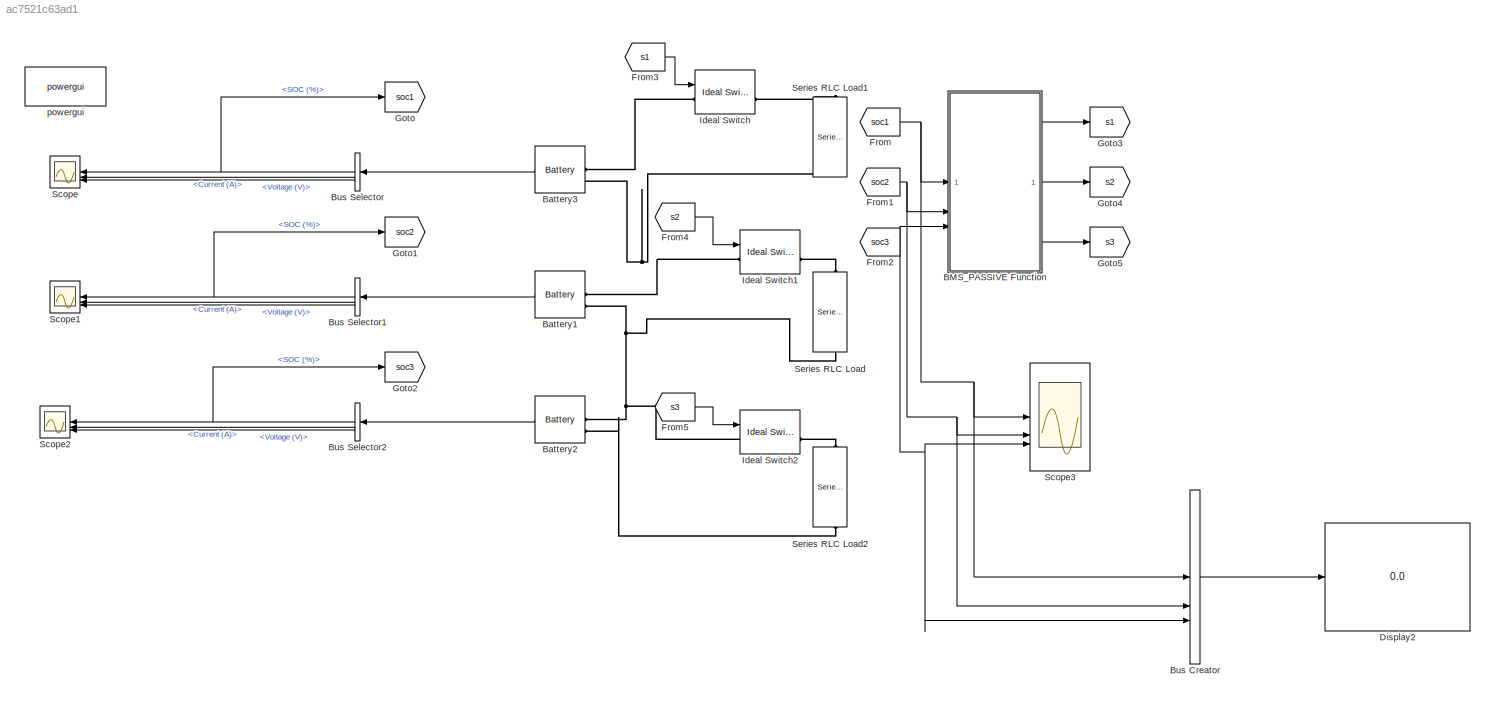
MODEL slx_ac7521c63ad1
KIND model
CONFIG AbsTol = auto
CONFIG EnableMultiTasking = off
CONFIG FixedStep = auto
CONFIG MaxStep = auto
CONFIG MinStep = auto
CONFIG RelTol = 1e-3
CONFIG SampleTimeConstraint = Unconstrained
CONFIG SolverName = VariableStepAuto
CONFIG StartTime = 0.0
CONFIG StopTime = 300
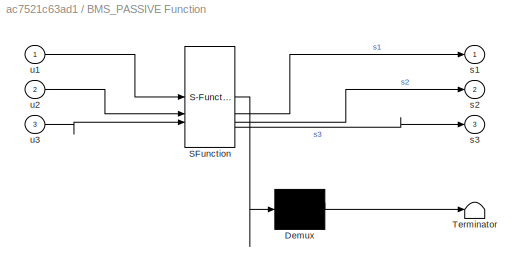
BLOCK [SubSystem] BMS_PASSIVE Function
  ErrorFcn = Stateflow.Translate.translate
  LibrarySourceBlock = simulink/User-Defined\nFunctions/MATLAB Function
  PermitHierarchicalResolution = ExplicitOnly
  SFBlockType = MATLAB Function
  TreatAsAtomicUnit = on
BLOCK [Demux] BMS_PASSIVE Function/ Demux 
  Outputs = 1
BLOCK [S-Function] BMS_PASSIVE Function/ SFunction 
  EnableBusSupport = on
  FunctionName = sf_sfun
  PortCounts = [3 4]
  SFcnIsStateOwnerBlock = off
  SFunctionDeploymentMode = off
  Tag = Stateflow S-Function 2
BLOCK [Terminator] BMS_PASSIVE Function/ Terminator 
BLOCK [Outport] BMS_PASSIVE Function/s1
BLOCK [Outport] BMS_PASSIVE Function/s2
  Port = 2
BLOCK [Outport] BMS_PASSIVE Function/s3
  Port = 3
BLOCK [Inport] BMS_PASSIVE Function/u1
BLOCK [Inport] BMS_PASSIVE Function/u2
  Port = 2
BLOCK [Inport] BMS_PASSIVE Function/u3
  Port = 3
BLOCK [Reference] Battery1  REF=spsBatteryLib/Battery
  LibrarySourceBlock = sps_lib/Sources/Battery
  SourceBlock = spsBatteryLib/Battery
  SourceType = Battery
BLOCK [Reference] Battery2  REF=spsBatteryLib/Battery
  LibrarySourceBlock = sps_lib/Sources/Battery
  SourceBlock = spsBatteryLib/Battery
  SourceType = Battery
BLOCK [Reference] Battery3  REF=spsBatteryLib/Battery
  LibrarySourceBlock = sps_lib/Sources/Battery
  SourceBlock = spsBatteryLib/Battery
  SourceType = Battery
BLOCK [BusCreator] Bus Creator
  DisplayOption = bar
  InheritFromInputs = on
  Inputs = 3
BLOCK [BusSelector] Bus Selector
  NameLocation = top
  OutputSignals = SOC (%),Current (A),Voltage (V)
BLOCK [BusSelector] Bus Selector1
  NameLocation = top
  OutputSignals = SOC (%),Current (A),Voltage (V)
BLOCK [BusSelector] Bus Selector2
  NameLocation = top
  OutputSignals = SOC (%),Current (A),Voltage (V)
BLOCK [Display] Display2
  Decimation = 1
BLOCK [From] From
  GotoTag = soc1
BLOCK [From] From1
  GotoTag = soc2
BLOCK [From] From2
  GotoTag = soc3
BLOCK [From] From3
  GotoTag = s1
BLOCK [From] From4
  GotoTag = s2
BLOCK [From] From5
  GotoTag = s3
BLOCK [Goto] Goto
  GotoTag = soc1
BLOCK [Goto] Goto1
  GotoTag = soc2
BLOCK [Goto] Goto2
  GotoTag = soc3
BLOCK [Goto] Goto3
  GotoTag = s1
BLOCK [Goto] Goto4
  GotoTag = s2
BLOCK [Goto] Goto5
  GotoTag = s3
BLOCK [Reference] Ideal Switch  REF=spsIdealSwitchLib/Ideal Switch
  LibrarySourceBlock = sps_lib/Power Electronics/Ideal Switch
  SourceBlock = spsIdealSwitchLib/Ideal Switch
  SourceType = Ideal Switch
BLOCK [Reference] Ideal Switch1  REF=spsIdealSwitchLib/Ideal Switch
  LibrarySourceBlock = sps_lib/Power Electronics/Ideal Switch
  SourceBlock = spsIdealSwitchLib/Ideal Switch
  SourceType = Ideal Switch
BLOCK [Reference] Ideal Switch2  REF=spsIdealSwitchLib/Ideal Switch
  LibrarySourceBlock = sps_lib/Power Electronics/Ideal Switch
  SourceBlock = spsIdealSwitchLib/Ideal Switch
  SourceType = Ideal Switch
BLOCK [Scope] Scope
  Floating = off
  NameLocation = top
  NumInputPorts = 3
  ScopeSpecificationString = Simulink.scopes.TimeScopeBlockCfg('CurrentConfiguration', extmgr.ConfigurationSet(extmgr.Configuration('Core','General UI',true),extmgr.Configuration('Core','Source UI',true),extmgr.Configuration('Sources','WiredSimulink',true),extmgr.Configuration('Visuals','Time Domain',true,'SerializedDisplays',{struct('MinYLimReal','-12.4997','MaxYLimReal','112.49997','YLabelReal','','MinYLimMag','0.00000','Ma...<+2630ch>
BLOCK [Scope] Scope1
  Floating = off
  NameLocation = top
  NumInputPorts = 3
  ScopeSpecificationString = Simulink.scopes.TimeScopeBlockCfg('CurrentConfiguration', extmgr.ConfigurationSet(extmgr.Configuration('Core','General UI',true),extmgr.Configuration('Core','Source UI',true),extmgr.Configuration('Sources','WiredSimulink',true,'DataLoggingVariableName','ScopeData1'),extmgr.Configuration('Visuals','Time Domain',true,'SerializedDisplays',{struct('MinYLimReal','-10.00000','MaxYLimReal','90.00000','YL...<+2667ch>
BLOCK [Scope] Scope2
  Floating = off
  NameLocation = top
  NumInputPorts = 3
  ScopeSpecificationString = Simulink.scopes.TimeScopeBlockCfg('CurrentConfiguration', extmgr.ConfigurationSet(extmgr.Configuration('Core','General UI',true),extmgr.Configuration('Core','Source UI',true),extmgr.Configuration('Sources','WiredSimulink',true,'DataLoggingVariableName','ScopeData2'),extmgr.Configuration('Visuals','Time Domain',true,'SerializedDisplays',{struct('MinYLimReal','-10.875','MaxYLimReal','97.875','YLabel...<+2662ch>
BLOCK [Scope] Scope3
  Floating = off
  NumInputPorts = 3
  ScopeSpecificationString = Simulink.scopes.TimeScopeBlockCfg('CurrentConfiguration', extmgr.ConfigurationSet(extmgr.Configuration('Core','General UI',true,'FigureColor',[0.67843137254902 0.92156862745098 1]),extmgr.Configuration('Core','Source UI',true),extmgr.Configuration('Sources','WiredSimulink',true,'DataLoggingVariableName','ScopeData3'),extmgr.Configuration('Visuals','Time Domain',true,'SerializedDisplays',{struct('M...<+3579ch>
BLOCK [Reference] Series RLC Load  REF=spsSeriesRLCLoadLib/Series RLC Load
  AttributesFormatString = \n
  LibrarySourceBlock = sps_lib/Passives/Series RLC Load
  NameLocation = left
  SourceBlock = spsSeriesRLCLoadLib/Series RLC Load
  SourceType = Series RLC Load
BLOCK [Reference] Series RLC Load1  REF=spsSeriesRLCLoadLib/Series RLC Load
  AttributesFormatString = \n
  LibrarySourceBlock = sps_lib/Passives/Series RLC Load
  NameLocation = left
  SourceBlock = spsSeriesRLCLoadLib/Series RLC Load
  SourceType = Series RLC Load
BLOCK [Reference] Series RLC Load2  REF=spsSeriesRLCLoadLib/Series RLC Load
  AttributesFormatString = \n
  LibrarySourceBlock = sps_lib/Passives/Series RLC Load
  NameLocation = left
  SourceBlock = spsSeriesRLCLoadLib/Series RLC Load
  SourceType = Series RLC Load
BLOCK [Reference] powergui  REF=spspowerguiLib/powergui
  Priority = 1
  SourceBlock = spspowerguiLib/powergui
  SourceType = PSB option menu block
LINE BMS_PASSIVE Function:1 -> Goto3:1
LINE BMS_PASSIVE Function:2 -> Goto4:1
LINE BMS_PASSIVE Function:3 -> Goto5:1
LINE Battery1:1 -> Bus Selector1:1
LINE Battery2:1 -> Bus Selector2:1
LINE Battery3:1 -> Bus Selector:1
LINE Bus Creator:1 -> Display2:1
NET Bus Selector1:1 -> Goto1:1, Scope1:1
LINE Bus Selector1:2 -> Scope1:2
LINE Bus Selector1:3 -> Scope1:3
NET Bus Selector2:1 -> Goto2:1, Scope2:1
LINE Bus Selector2:2 -> Scope2:2
LINE Bus Selector2:3 -> Scope2:3
NET Bus Selector:1 -> Goto:1, Scope:1
LINE Bus Selector:2 -> Scope:2
LINE Bus Selector:3 -> Scope:3
NET From1:1 -> BMS_PASSIVE Function:2, Bus Creator:2, Scope3:2
NET From2:1 -> BMS_PASSIVE Function:3, Bus Creator:3, Scope3:3
LINE From3:1 -> Ideal Switch:1
LINE From4:1 -> Ideal Switch1:1
LINE From5:1 -> Ideal Switch2:1
NET From:1 -> BMS_PASSIVE Function:1, Bus Creator:1, Scope3:1
PNET net1: Battery1:LConn1 -- Battery3:LConn2 -- Ideal Switch1:LConn1 -- Series RLC Load1:RConn1
PNET net2: Battery1:LConn2 -- Battery2:LConn1 -- Ideal Switch2:LConn1 -- Series RLC Load:RConn1
PLINE Battery2:LConn2 -- Series RLC Load2:RConn1
PLINE Battery3:LConn1 -- Ideal Switch:LConn1
PLINE Ideal Switch1:RConn1 -- Series RLC Load:LConn1
PLINE Ideal Switch2:RConn1 -- Series RLC Load2:LConn1
PLINE Ideal Switch:RConn1 -- Series RLC Load1:LConn1
note: NET lines group one-source signal fan-out (src -> all destinations, sorted); 1:1 wires keep LINE; PNET lines group multi-terminal physical nets as a canonical sorted terminal list (undirected conserving connections); 2-terminal nets keep the pairwise PLINE form
CHART BMS_PASSIVE Function states=1 transitions=1
  STATE_LABEL 'eML_blk_kernel()'
  STATE_LABEL 'SCRIPT:\nfunction [s1,s2,s3] = fcn(u1,u2,u3)\n\n\nu1=int32(u1)\nu2=int32(u2)\nu3=int32(u3)\n   \nif ((u1>u2) || (u1>u3))\n    s1=1;\nelse\n    s1=0;\n\nend\n\nif ((u2>u1) || (u2>u3))\n    s2=1;\nelse\n    s2=0;\nend\nif ((u3>u1) || (u3>u2))\n    s3=1;\nelse\n    s3=0;\nend\nif (abs(u3-u1)<1 || abs(u2-u1)<1)\n    s3=1;\nend\n'
CHART  states=0 transitions=0
